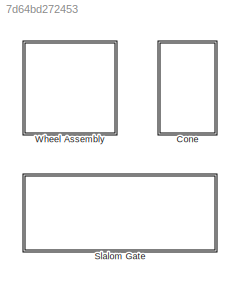
MODEL slx_7d64bd272453
KIND library
CONFIG AbsTol = auto
CONFIG EnableMultiTasking = on
CONFIG FixedStep = auto
CONFIG MaxStep = auto
CONFIG MinStep = auto
CONFIG RelTol = 1e-3
CONFIG SampleTimeConstraint = Unconstrained
CONFIG Solver = VariableStepAuto
CONFIG SolverName = VariableStepAuto
CONFIG StartTime = 0.0
CONFIG StopTime = 10.0
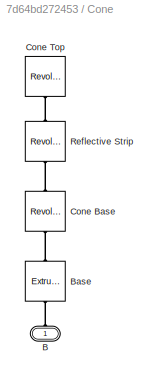
BLOCK [SubSystem] Cone
  Ports = [0, 0, 0, 0, 0, 1]
  RequestExecContextInheritance = off
BLOCK [PMIOPort] Cone/B
  NameLocation = right
  Side = Left
BLOCK [Reference] Cone/Base  REF=sm_lib/Body Elements/Extruded Solid
  NameLocation = right
  Ports = [0, 0, 0, 0, 0, 1, 1]
  SourceBlock = sm_lib/Body Elements/Extruded Solid
  SourceProductBaseCode = MS
  SourceType = Extruded Solid
BLOCK [Reference] Cone/Cone Base  REF=sm_lib/Body Elements/Revolved Solid
  NameLocation = right
  Ports = [0, 0, 0, 0, 0, 1, 1]
  SourceBlock = sm_lib/Body Elements/Revolved Solid
  SourceProductBaseCode = MS
  SourceType = Revolved Solid
BLOCK [Reference] Cone/Cone Top  REF=sm_lib/Body Elements/Revolved Solid
  NameLocation = right
  Ports = [0, 0, 0, 0, 0, 1]
  SourceBlock = sm_lib/Body Elements/Revolved Solid
  SourceProductBaseCode = MS
  SourceType = Revolved Solid
BLOCK [Reference] Cone/Reflective Strip  REF=sm_lib/Body Elements/Revolved Solid
  NameLocation = right
  Ports = [0, 0, 0, 0, 0, 1, 1]
  SourceBlock = sm_lib/Body Elements/Revolved Solid
  SourceProductBaseCode = MS
  SourceType = Revolved Solid
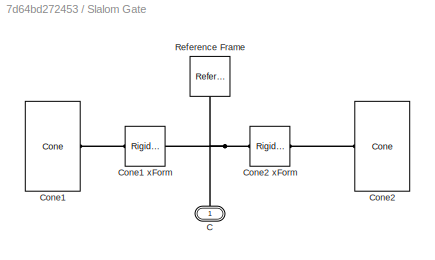
BLOCK [SubSystem] Slalom Gate
  Ports = [0, 0, 0, 0, 0, 1]
  RequestExecContextInheritance = off
BLOCK [PMIOPort] Slalom Gate/C
  NameLocation = left
  Side = Left
BLOCK [Reference] Slalom Gate/Cone1  REF=$bdroot/Cone
  Ports = [0, 0, 0, 0, 0, 1]
  SourceBlock = $bdroot/Cone
  SourceType = Cone
BLOCK [Reference] Slalom Gate/Cone1 xForm  REF=sm_lib/Frames and
Transforms/Rigid
Transform
  Ports = [0, 0, 0, 0, 0, 1, 1]
  SourceBlock = sm_lib/Frames and\nTransforms/Rigid\nTransform
  SourceProductBaseCode = MS
  SourceType = Rigid\nTransform
BLOCK [Reference] Slalom Gate/Cone2  REF=$bdroot/Cone
  Ports = [0, 0, 0, 0, 0, 1]
  SourceBlock = $bdroot/Cone
  SourceType = Cone
BLOCK [Reference] Slalom Gate/Cone2 xForm  REF=sm_lib/Frames and
Transforms/Rigid
Transform
  Ports = [0, 0, 0, 0, 0, 1, 1]
  SourceBlock = sm_lib/Frames and\nTransforms/Rigid\nTransform
  SourceProductBaseCode = MS
  SourceType = Rigid\nTransform
BLOCK [Reference] Slalom Gate/Reference Frame  REF=sm_lib/Frames and
Transforms/Reference
Frame
  NameLocation = left
  Ports = [0, 0, 0, 0, 0, 0, 1]
  SourceBlock = sm_lib/Frames and\nTransforms/Reference\nFrame
  SourceProductBaseCode = MS
  SourceType = Reference\nFrame
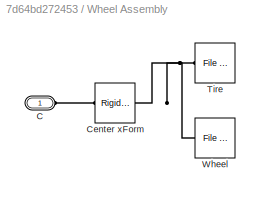
BLOCK [SubSystem] Wheel Assembly
  Ports = [0, 0, 0, 0, 0, 1]
  RequestExecContextInheritance = off
BLOCK [PMIOPort] Wheel Assembly/C
  Side = Left
BLOCK [Reference] Wheel Assembly/Center xForm  REF=sm_lib/Frames and
Transforms/Rigid
Transform
  Ports = [0, 0, 0, 0, 0, 1, 1]
  SourceBlock = sm_lib/Frames and\nTransforms/Rigid\nTransform
  SourceProductBaseCode = MS
  SourceType = Rigid\nTransform
BLOCK [Reference] Wheel Assembly/Tire  REF=sm_lib/Body Elements/File Solid
  Ports = [0, 0, 0, 0, 0, 0, 1]
  SourceBlock = sm_lib/Body Elements/File Solid
  SourceProductBaseCode = MS
  SourceType = File Solid
BLOCK [Reference] Wheel Assembly/Wheel  REF=sm_lib/Body Elements/File Solid
  Ports = [0, 0, 0, 0, 0, 0, 1]
  SourceBlock = sm_lib/Body Elements/File Solid
  SourceProductBaseCode = MS
  SourceType = File Solid
PLINE Cone/B:RConn1 -- Cone/Base:LConn1
PLINE Cone/Base:RConn1 -- Cone/Cone Base:LConn1
PLINE Cone/Cone Base:RConn1 -- Cone/Reflective Strip:LConn1
PLINE Cone/Cone Top:LConn1 -- Cone/Reflective Strip:RConn1
PNET net1: Slalom Gate/C:RConn1 -- Slalom Gate/Cone1 xForm:LConn1 -- Slalom Gate/Cone2 xForm:LConn1 -- Slalom Gate/Reference Frame:RConn1
PLINE Slalom Gate/Cone1 xForm:RConn1 -- Slalom Gate/Cone1:LConn1
PLINE Slalom Gate/Cone2 xForm:RConn1 -- Slalom Gate/Cone2:LConn1
PLINE Wheel Assembly/C:RConn1 -- Wheel Assembly/Center xForm:RConn1
PNET net2: Wheel Assembly/Center xForm:LConn1 -- Wheel Assembly/Tire:RConn1 -- Wheel Assembly/Wheel:RConn1
note: PNET lines group multi-terminal physical nets as a canonical sorted terminal list (undirected conserving connections); 2-terminal nets keep the pairwise PLINE form
